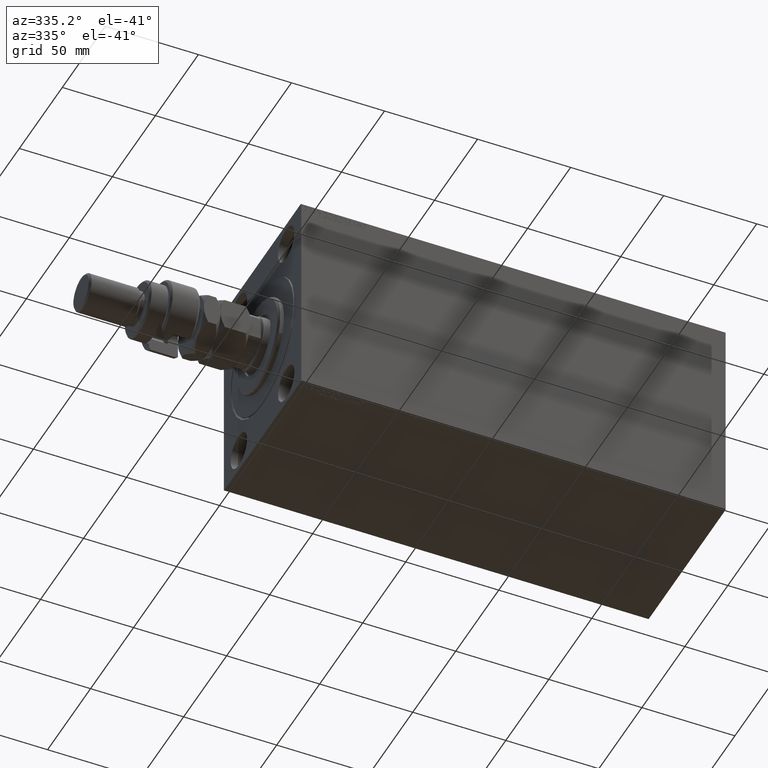
[diagram: clean part render]
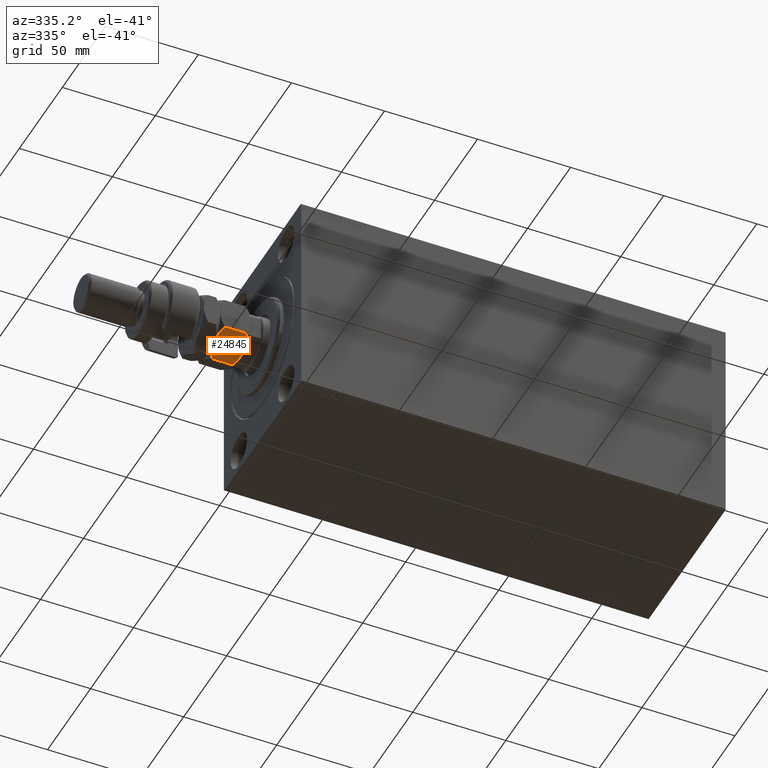
[diagram: same view with one face highlighted and labeled with its STEP entity id]
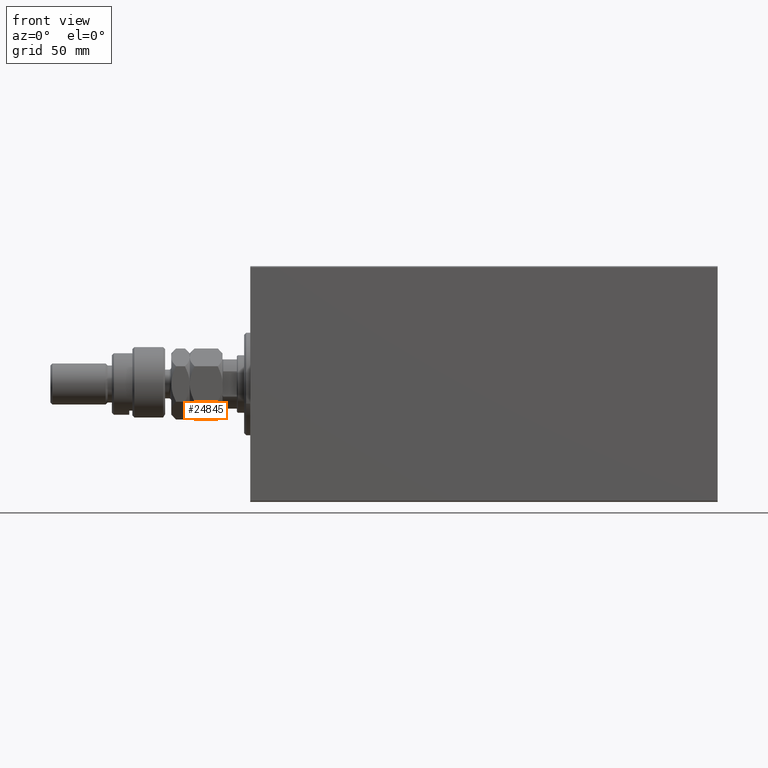
[diagram: same view with one face highlighted and labeled with its STEP entity id]
A machine part, auxiliary view. The second image highlights one B-rep face of the part: STEP entity #24845.
A second angle (front view) of the same face is appended — the face is thin or edge-on in the first view.
In plain terms, the highlighted planar face has unit normal (0, 0.5, 0.866).
Its self-contained STEP definition (entity closure, byte-faithful):
#1041 = CARTESIAN_POINT ( 'NONE',  ( -13.82525345580783060, -9.338494271363318333, 1.642267842169780279 ) ) ;
#2300 = CARTESIAN_POINT ( 'NONE',  ( -14.99999999999999645, -8.660254037844389075, 13.67949192431124139 ) ) ;
#2424 = EDGE_CURVE ( 'NONE', #32818, #19222, #24548, .T. ) ;
#2761 = FACE_OUTER_BOUND ( 'NONE', #44541, .T. ) ;
#3040 = CARTESIAN_POINT ( 'NONE',  ( -1.174746544192163844, -16.64226784216984711, 14.35773215783022572 ) ) ;
#6585 = CARTESIAN_POINT ( 'NONE',  ( -4.913081180497412603, -14.48393933357810504, 15.76967007806078946 ) ) ;
#7549 = ORIENTED_EDGE ( 'NONE', *, *, #2424, .F. ) ;
#7717 = LINE ( 'NONE', #25664, #19586 ) ;
#8966 = VERTEX_POINT ( 'NONE', #44491 ) ;
#9178 = CARTESIAN_POINT ( 'NONE',  ( -2.796947266322166691E-15, -17.32050807568877104, 2.320508075688761718 ) ) ;
#10334 = DIRECTION ( 'NONE',  ( -0.000000000000000000, -0.000000000000000000, -1.000000000000000000 ) ) ;
#10719 = EDGE_CURVE ( 'NONE', #10784, #8966, #21798, .T. ) ;
#10784 = VERTEX_POINT ( 'NONE', #28062 ) ;
#11214 = ORIENTED_EDGE ( 'NONE', *, *, #26890, .F. ) ;
#11546 = CARTESIAN_POINT ( 'NONE',  ( -8.156876182308250733, -12.61113341608665905, 16.00000000000000355 ) ) ;
#12027 = CARTESIAN_POINT ( 'NONE',  ( -7.500000000000000000, -12.99038105676658006, 0.000000000000000000 ) ) ;
#12983 = DIRECTION ( 'NONE',  ( -0.000000000000000000, -0.000000000000000000, -1.000000000000000000 ) ) ;
#13102 = EDGE_CURVE ( 'NONE', #36500, #26092, #23858, .T. ) ;
#13377 = PLANE ( 'NONE',  #29321 ) ;
#15328 = CARTESIAN_POINT ( 'NONE',  ( -4.881674457977378090, -14.50207201327941320, 0.2838026619462943323 ) ) ;
#15588 = CARTESIAN_POINT ( 'NONE',  ( -7.500000000000001776, -12.99038105676658361, 16.00000000000000000 ) ) ;
#16886 = EDGE_CURVE ( 'NONE', #36500, #32818, #34573, .T. ) ;
#17141 = CARTESIAN_POINT ( 'NONE',  ( -14.99999999999999645, -8.660254037844389075, 16.00000000000000000 ) ) ;
#17630 = CARTESIAN_POINT ( 'NONE',  ( -10.08691881950258740, -11.49682277995505331, 0.2303299219392165864 ) ) ;
#18007 = B_SPLINE_CURVE_WITH_KNOTS ( 'NONE', 3,
 ( #43971, #33372, #17630, #42872, #1041, #44431 ),
 .UNSPECIFIED., .F., .F.,
 ( 4, 2, 4 ),
 ( 0.008977392552884445528, 0.01343452311421656012, 0.01789165367554867297 ),
 .UNSPECIFIED. ) ;
#18862 = CARTESIAN_POINT ( 'NONE',  ( -10.75222765045651308, -11.11270654730956409, 15.55242859148697576 ) ) ;
#18877 = CARTESIAN_POINT ( 'NONE',  ( -1.176108425306644722, -16.64148155974179488, 1.641481559741788665 ) ) ;
#19105 = CARTESIAN_POINT ( 'NONE',  ( -8.823580389329300999, -12.22621156269320331, 15.94046462602529957 ) ) ;
#19222 = VERTEX_POINT ( 'NONE', #22581 ) ;
#19316 = ORIENTED_EDGE ( 'NONE', *, *, #33995, .F. ) ;
#19586 = VECTOR ( 'NONE', #10334, 1000.000000000000000 ) ;
#21798 = B_SPLINE_CURVE_WITH_KNOTS ( 'NONE', 3,
 ( #9178, #18877, #23583, #33274, #15328, #29733, #44108, #12027 ),
 .UNSPECIFIED., .F., .F.,
 ( 4, 2, 2, 4 ),
 ( 2.544309033648719118E-07, 0.004488823491893905240, 0.006733108022389175384, 0.008977392552884445528 ),
 .UNSPECIFIED. ) ;
#22581 = CARTESIAN_POINT ( 'NONE',  ( -3.416099238086855886E-15, -17.32050807568877104, 13.67949192431124317 ) ) ;
#22966 = VECTOR ( 'NONE', #12983, 1000.000000000000000 ) ;
#23583 = CARTESIAN_POINT ( 'NONE',  ( -2.378834511187505996, -15.94708733029708725, 1.064486067744005560 ) ) ;
#23858 = LINE ( 'NONE', #41762, #22966 ) ;
#24482 = DIRECTION ( 'NONE',  ( -0.8660254037844385966, 0.4999999999999999445, 0.000000000000000000 ) ) ;
#24548 = B_SPLINE_CURVE_WITH_KNOTS ( 'NONE', 3,
 ( #33802, #28540, #6585, #24767, #3040, #46453 ),
 .UNSPECIFIED., .F., .F.,
 ( 4, 2, 4 ),
 ( 0.008977392552884447263, 0.01343452311421656359, 0.01789165367554867991 ),
 .UNSPECIFIED. ) ;
#24767 = CARTESIAN_POINT ( 'NONE',  ( -2.383929548160354628, -15.94414570932928576, 14.93952096862912526 ) ) ;
#24845 = ADVANCED_FACE ( 'NONE', ( #2761 ), #13377, .F. ) ;
#25664 = CARTESIAN_POINT ( 'NONE',  ( -3.035766082959412415E-15, -17.32050807568877104, 16.00000000000000000 ) ) ;
#26092 = VERTEX_POINT ( 'NONE', #36420 ) ;
#26890 = EDGE_CURVE ( 'NONE', #19222, #10784, #7717, .T. ) ;
#28062 = CARTESIAN_POINT ( 'NONE',  ( -2.796947266322166691E-15, -17.32050807568877104, 2.320508075688761718 ) ) ;
#28540 = CARTESIAN_POINT ( 'NONE',  ( -6.195449321423087241, -13.74356374221446586, 16.00000000000001066 ) ) ;
#29321 = AXIS2_PLACEMENT_3D ( 'NONE', #17141, #42386, #24482 ) ;
#29478 = CARTESIAN_POINT ( 'NONE',  ( -12.62116548881249223, -10.03367478323606221, 14.93551393225599533 ) ) ;
#29733 = CARTESIAN_POINT ( 'NONE',  ( -6.176419610670697224, -13.75455055083996214, 0.05953537397470286957 ) ) ;
#30176 = CARTESIAN_POINT ( 'NONE',  ( -14.99999999999999645, -8.660254037844389075, 13.67949192431124139 ) ) ;
#31739 = ORIENTED_EDGE ( 'NONE', *, *, #16886, .F. ) ;
#32450 = ORIENTED_EDGE ( 'NONE', *, *, #13102, .T. ) ;
#32818 = VERTEX_POINT ( 'NONE', #15588 ) ;
#33274 = CARTESIAN_POINT ( 'NONE',  ( -4.247772349543487813, -14.86805556622358893, 0.4475714085130264031 ) ) ;
#33372 = CARTESIAN_POINT ( 'NONE',  ( -8.804550678576912759, -12.23719837131869248, -4.878909776184767981E-16 ) ) ;
#33802 = CARTESIAN_POINT ( 'NONE',  ( -7.500000000000001776, -12.99038105676658361, 16.00000000000000000 ) ) ;
#33995 = EDGE_CURVE ( 'NONE', #8966, #26092, #18007, .T. ) ;
#34573 = B_SPLINE_CURVE_WITH_KNOTS ( 'NONE', 3,
 ( #30176, #36560, #29478, #18862, #37488, #19105, #11546, #44785 ),
 .UNSPECIFIED., .F., .F.,
 ( 4, 2, 2, 4 ),
 ( 2.544309033641602453E-07, 0.004488823491893906108, 0.006733108022389176252, 0.008977392552884447263 ),
 .UNSPECIFIED. ) ;
#36420 = CARTESIAN_POINT ( 'NONE',  ( -14.99999999999999645, -8.660254037844389075, 2.320508075688762606 ) ) ;
#36500 = VERTEX_POINT ( 'NONE', #2300 ) ;
#36560 = CARTESIAN_POINT ( 'NONE',  ( -13.82389157469335750, -9.339280553791368789, 14.35851844025821933 ) ) ;
#37488 = CARTESIAN_POINT ( 'NONE',  ( -10.11832554202262102, -11.47869010025374692, 15.71619733805371411 ) ) ;
#41762 = CARTESIAN_POINT ( 'NONE',  ( -14.99999999999999645, -8.660254037844389075, 16.00000000000000000 ) ) ;
#42386 = DIRECTION ( 'NONE',  ( 0.5000000000000000000, 0.8660254037844387076, -0.000000000000000000 ) ) ;
#42872 = CARTESIAN_POINT ( 'NONE',  ( -12.61607045183964715, -10.03661640420386902, 1.060479031370877845 ) ) ;
#43971 = CARTESIAN_POINT ( 'NONE',  ( -7.500000000000000000, -12.99038105676658006, 0.000000000000000000 ) ) ;
#44108 = CARTESIAN_POINT ( 'NONE',  ( -6.843123817691746602, -13.36962869744650284, -3.760826285809093999E-16 ) ) ;
#44431 = CARTESIAN_POINT ( 'NONE',  ( -14.99999999999999645, -8.660254037844389075, 2.320508075688762606 ) ) ;
#44491 = CARTESIAN_POINT ( 'NONE',  ( -7.500000000000000000, -12.99038105676658006, 0.000000000000000000 ) ) ;
#44541 = EDGE_LOOP ( 'NONE', ( #44719, #11214, #7549, #31739, #32450, #19316 ) ) ;
#44719 = ORIENTED_EDGE ( 'NONE', *, *, #10719, .F. ) ;
#44785 = CARTESIAN_POINT ( 'NONE',  ( -7.500000000000001776, -12.99038105676658361, 16.00000000000000000 ) ) ;
#46453 = CARTESIAN_POINT ( 'NONE',  ( -3.416099238086855886E-15, -17.32050807568877104, 13.67949192431124317 ) ) ;